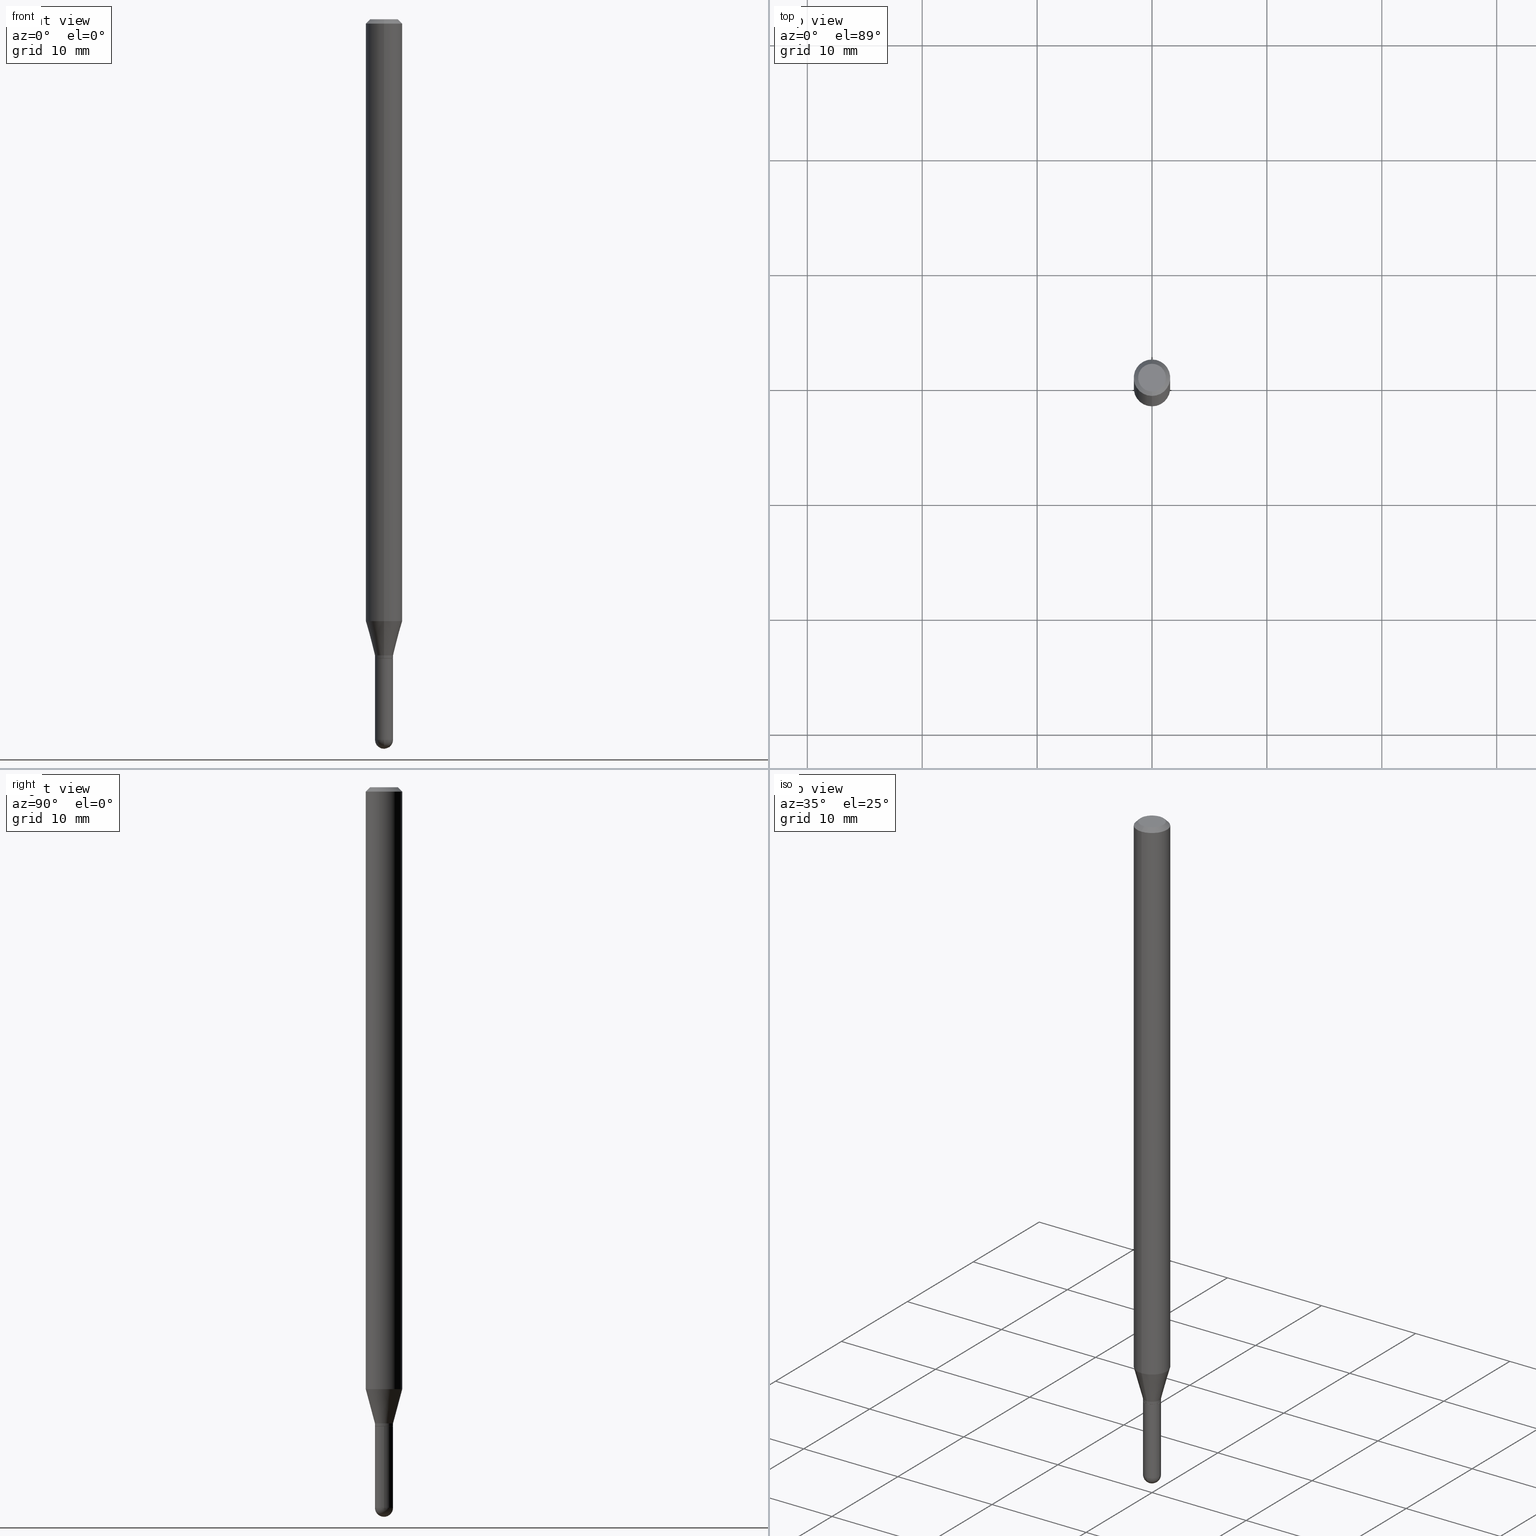
[diagram: canonical four-view strip — front | top / right | iso, engineering-drawing reading convention]
A machine part, canonical four-view strip (front | top / right | iso — engineering-drawing reading convention). The complete STEP part file that produces these views, byte-faithful:
ISO-10303-21;
HEADER;
FILE_DESCRIPTION (( 'STEP AP203' ),
    '1' );
FILE_NAME ('02733.STEP',
    '2024-03-07T21:04:35',
    ( '' ),
    ( '' ),
    'SwSTEP 2.0',
    'SolidWorks 2023',
    '' );
FILE_SCHEMA (( 'CONFIG_CONTROL_DESIGN' ));
ENDSEC;

DATA;
#1 = CARTESIAN_POINT ( 'NONE',  ( 2.202682480856837865E-16, 0.03099999999999231148, -2.180000000000000160 ) ) ;
#2 = FACE_OUTER_BOUND ( 'NONE', #406, .T. ) ;
#3 = ADVANCED_FACE ( 'NONE', ( #255 ), #47, .T. ) ;
#4 = LINE ( 'NONE', #313, #112 ) ;
#5 = AXIS2_PLACEMENT_3D ( 'NONE', #188, #359, #45 ) ;
#6 = ADVANCED_FACE ( 'NONE', ( #25 ), #159, .T. ) ;
#7 = DIRECTION ( 'NONE',  ( -2.445448998971213131E-29, 3.491509703900840918E-15, 1.000000000000000000 ) ) ;
#8 = DATE_TIME_ROLE ( 'creation_date' ) ;
#9 = FACE_OUTER_BOUND ( 'NONE', #203, .T. ) ;
#10 = CARTESIAN_POINT ( 'NONE',  ( 5.354310583247471482E-29, -7.644660496690890779E-15, -2.189500000000000224 ) ) ;
#11 = CONICAL_SURFACE ( 'NONE', #282, 0.06250000000000000000, 0.7853981633974483900 ) ;
#12 = CIRCLE ( 'NONE', #353, 0.04749999999999999362 ) ;
#13 = AXIS2_PLACEMENT_3D ( 'NONE', #66, #259, #212 ) ;
#14 = CARTESIAN_POINT ( 'NONE',  ( 5.043592810545655603E-29, -7.201030668786385681E-15, -2.062440399561580762 ) ) ;
#15 = ORIENTED_EDGE ( 'NONE', *, *, #384, .F. ) ;
#16 = CARTESIAN_POINT ( 'NONE',  ( -4.364351673553916201E-16, -0.06250000000000000000, 2.182193564938025327E-16 ) ) ;
#17 = EDGE_LOOP ( 'NONE', ( #205, #465, #338, #242 ) ) ;
#18 = FACE_OUTER_BOUND ( 'NONE', #291, .T. ) ;
#19 = AXIS2_PLACEMENT_3D ( 'NONE', #65, #298, #211 ) ;
#20 = DIRECTION ( 'NONE',  ( -2.445448998971213131E-29, 3.491509703900840918E-15, 1.000000000000000000 ) ) ;
#21 = AXIS2_PLACEMENT_3D ( 'NONE', #139, #143, #466 ) ;
#22 = ORIENTED_EDGE ( 'NONE', *, *, #248, .F. ) ;
#23 = DIRECTION ( 'NONE',  ( -2.445448998971213131E-29, 3.491509703900840523E-15, 1.000000000000000000 ) ) ;
#24 = EDGE_CURVE ( 'NONE', #185, #439, #399, .T. ) ;
#25 = FACE_OUTER_BOUND ( 'NONE', #343, .T. ) ;
#26 = APPLICATION_CONTEXT ( 'configuration controlled 3d designs of mechanical parts and assemblies' ) ;
#27 =( NAMED_UNIT ( * ) SI_UNIT ( $, .STERADIAN. ) SOLID_ANGLE_UNIT ( ) );
#28 = VERTEX_POINT ( 'NONE', #147 ) ;
#29 = DIRECTION ( 'NONE',  ( -2.445448998971212570E-29, 3.491509703900840918E-15, 1.000000000000000000 ) ) ;
#30 = AXIS2_PLACEMENT_3D ( 'NONE', #113, #435, #425 ) ;
#31 = DIRECTION ( 'NONE',  ( -6.982962677686266711E-15, -1.000000000000000000, 3.491509703900840523E-15 ) ) ;
#32 = ADVANCED_FACE ( 'NONE', ( #275 ), #383, .T. ) ;
#33 = CARTESIAN_POINT ( 'NONE',  ( 0.000000000000000000, 0.000000000000000000, 0.000000000000000000 ) ) ;
#34 = SHAPE_DEFINITION_REPRESENTATION ( #349, #69 ) ;
#35 = VERTEX_POINT ( 'NONE', #285 ) ;
#36 = DIRECTION ( 'NONE',  ( 1.000000000000000000, -6.982962677686265922E-15, 4.883557194083112340E-29 ) ) ;
#37 = EDGE_CURVE ( 'NONE', #231, #361, #344, .T. ) ;
#38 =( GEOMETRIC_REPRESENTATION_CONTEXT ( 3 ) GLOBAL_UNCERTAINTY_ASSIGNED_CONTEXT ( ( #347 ) ) GLOBAL_UNIT_ASSIGNED_CONTEXT ( ( #254, #210, #27 ) ) REPRESENTATION_CONTEXT ( 'NONE', 'WORKASPACE' ) );
#39 = PERSON_AND_ORGANIZATION ( #500, #389 ) ;
#40 = DIRECTION ( 'NONE',  ( 1.000000000000000000, -6.982962677686270655E-15, 0.000000000000000000 ) ) ;
#41 = DIRECTION ( 'NONE',  ( 4.937700262164548042E-15, 0.7071067811865451302, -0.7071067811865499042 ) ) ;
#42 = COORDINATED_UNIVERSAL_TIME_OFFSET ( 5, 0, .BEHIND. ) ;
#43 = DIRECTION ( 'NONE',  ( -2.445448998971213131E-29, 3.491509703900840523E-15, 1.000000000000000000 ) ) ;
#44 = ORIENTED_EDGE ( 'NONE', *, *, #306, .T. ) ;
#45 = DIRECTION ( 'NONE',  ( 1.000000000000000000, -6.982962677686270655E-15, 0.000000000000000000 ) ) ;
#46 = ORIENTED_EDGE ( 'NONE', *, *, #486, .T. ) ;
#47 = CONICAL_SURFACE ( 'NONE', #19, 0.06250000000000000000, 0.7853981633974483900 ) ;
#48 = CIRCLE ( 'NONE', #505, 0.06250000000000000000 ) ;
#49 = AXIS2_PLACEMENT_3D ( 'NONE', #379, #29, #504 ) ;
#50 = EDGE_CURVE ( 'NONE', #99, #351, #448, .T. ) ;
#51 = CALENDAR_DATE ( 2024, 7, 3 ) ;
#52 = DIRECTION ( 'NONE',  ( -6.982962677686265922E-15, -1.000000000000000000, 3.491509703900840129E-15 ) ) ;
#53 = ORIENTED_EDGE ( 'NONE', *, *, #365, .F. ) ;
#54 = DIRECTION ( 'NONE',  ( 6.982962677686265922E-15, 1.000000000000000000, 0.000000000000000000 ) ) ;
#55 = ORIENTED_EDGE ( 'NONE', *, *, #218, .T. ) ;
#56 = LINE ( 'NONE', #61, #266 ) ;
#57 = ORIENTED_EDGE ( 'NONE', *, *, #345, .T. ) ;
#58 = AXIS2_PLACEMENT_3D ( 'NONE', #394, #43, #186 ) ;
#59 = DIRECTION ( 'NONE',  ( -2.445448998971213131E-29, 3.491509703900840523E-15, 1.000000000000000000 ) ) ;
#60 = ORIENTED_EDGE ( 'NONE', *, *, #50, .T. ) ;
#61 = CARTESIAN_POINT ( 'NONE',  ( 4.440892098500625669E-16, 0.06250000000000000000, -2.182193564938025327E-16 ) ) ;
#62 = DIRECTION ( 'NONE',  ( -2.445448998971213131E-29, 3.491509703900840523E-15, 1.000000000000000000 ) ) ;
#63 = VECTOR ( 'NONE', #20, 39.37007874015748143 ) ;
#64 = DIRECTION ( 'NONE',  ( -2.445468806185136597E-29, 3.491481338843145583E-15, 1.000000000000000000 ) ) ;
#65 = CARTESIAN_POINT ( 'NONE',  ( 3.668173498456900411E-31, -5.237264555851376057E-17, -0.01500000000000032904 ) ) ;
#66 = CARTESIAN_POINT ( 'NONE',  ( 6.035211466974647334E-29, -8.624263830681084699E-15, -2.469000000000000306 ) ) ;
#67 = APPROVAL_STATUS ( 'not_yet_approved' ) ;
#68 = EDGE_LOOP ( 'NONE', ( #408, #249, #498, #70 ) ) ;
#69 = ADVANCED_BREP_SHAPE_REPRESENTATION ( '02733', ( #424, #241, #443 ), #38 ) ;
#70 = ORIENTED_EDGE ( 'NONE', *, *, #89, .F. ) ;
#71 = CC_DESIGN_APPROVAL ( #386, ( #334 ) ) ;
#72 = CARTESIAN_POINT ( 'NONE',  ( 8.024633299463174581E-45, -1.145723547990923036E-30, -3.281456003719191440E-16 ) ) ;
#73 = DATE_AND_TIME ( #184, #385 ) ;
#74 = ADVANCED_FACE ( 'NONE', ( #2 ), #415, .T. ) ;
#75 = DIRECTION ( 'NONE',  ( -6.982962677686265922E-15, -1.000000000000000000, 3.483106191921935554E-15 ) ) ;
#76 = CIRCLE ( 'NONE', #5, 0.03099999999999999978 ) ;
#77 = APPROVAL_PERSON_ORGANIZATION ( #346, #330, #214 ) ;
#78 = PERSON_AND_ORGANIZATION_ROLE ( 'creator' ) ;
#79 = ORIENTED_EDGE ( 'NONE', *, *, #125, .T. ) ;
#80 = DIRECTION ( 'NONE',  ( -2.445448998971213131E-29, 3.491509703900840523E-15, 1.000000000000000000 ) ) ;
#81 = SECURITY_CLASSIFICATION_LEVEL ( 'unclassified' ) ;
#82 = CARTESIAN_POINT ( 'NONE',  ( 3.668173498456900411E-31, -5.237264555851376057E-17, -0.01500000000000032904 ) ) ;
#83 = DIRECTION ( 'NONE',  ( -2.445448998971213131E-29, 3.491509703900840523E-15, 1.000000000000000000 ) ) ;
#84 = CARTESIAN_POINT ( 'NONE',  ( 2.202682480856832688E-16, 0.03099999999999216924, -2.189500000000000224 ) ) ;
#85 = CIRCLE ( 'NONE', #442, 0.04749999999999999362 ) ;
#86 = CIRCLE ( 'NONE', #13, 0.03099999999999960773 ) ;
#87 = ORIENTED_EDGE ( 'NONE', *, *, #258, .F. ) ;
#88 = CARTESIAN_POINT ( 'NONE',  ( -2.164718430082208858E-16, -0.03100000000000767419, -2.189500000000000224 ) ) ;
#89 = EDGE_CURVE ( 'NONE', #193, #202, #195, .T. ) ;
#90 = CARTESIAN_POINT ( 'NONE',  ( 5.043592810545655603E-29, -7.201030668786385681E-15, -2.062440399561580762 ) ) ;
#91 = ORIENTED_EDGE ( 'NONE', *, *, #350, .F. ) ;
#92 = CARTESIAN_POINT ( 'NONE',  ( 2.164718430083332245E-16, 0.03099999999999118044, -2.469000000000000306 ) ) ;
#93 = VECTOR ( 'NONE', #111, 39.37007874015748143 ) ;
#94 = CONICAL_SURFACE ( 'NONE', #21, 0.03049999999999999586, 0.7853981633974739252 ) ;
#95 = DIRECTION ( 'NONE',  ( 1.000000000000000000, -6.982962677686266711E-15, 4.876176775795935232E-29 ) ) ;
#96 = CC_DESIGN_PERSON_AND_ORGANIZATION_ASSIGNMENT ( #106, #110, ( #334 ) ) ;
#97 = ORIENTED_EDGE ( 'NONE', *, *, #235, .F. ) ;
#98 = DIRECTION ( 'NONE',  ( -6.982962677686265922E-15, -1.000000000000000000, 0.000000000000000000 ) ) ;
#99 = VERTEX_POINT ( 'NONE', #395 ) ;
#100 = LENGTH_MEASURE_WITH_UNIT ( LENGTH_MEASURE( 0.02539999999999999897 ), #219 );
#101 = AXIS2_PLACEMENT_3D ( 'NONE', #170, #206, #95 ) ;
#102 = DIRECTION ( 'NONE',  ( -4.937700262164674260E-15, -0.7071067811865632269, 0.7071067811865319186 ) ) ;
#103 = PERSON_AND_ORGANIZATION_ROLE ( 'design_owner' ) ;
#104 = DIRECTION ( 'NONE',  ( -6.982962677686265922E-15, -1.000000000000000000, 0.000000000000000000 ) ) ;
#105 = AXIS2_PLACEMENT_3D ( 'NONE', #198, #372, #240 ) ;
#106 = PERSON_AND_ORGANIZATION ( #500, #389 ) ;
#107 = VERTEX_POINT ( 'NONE', #215 ) ;
#108 = EDGE_CURVE ( 'NONE', #361, #35, #312, .T. ) ;
#109 = DIRECTION ( 'NONE',  ( 2.445448998971213131E-29, -3.491509703900840523E-15, -1.000000000000000000 ) ) ;
#110 = PERSON_AND_ORGANIZATION_ROLE ( 'classification_officer' ) ;
#111 = DIRECTION ( 'NONE',  ( -2.445448998971213131E-29, 3.491509703900840918E-15, 1.000000000000000000 ) ) ;
#112 = VECTOR ( 'NONE', #480, 39.37007874015748143 ) ;
#113 = CARTESIAN_POINT ( 'NONE',  ( 5.355533307746956891E-29, -7.646406251542840967E-15, -2.189999999999999947 ) ) ;
#114 = FACE_OUTER_BOUND ( 'NONE', #199, .T. ) ;
#115 = ADVANCED_FACE ( 'NONE', ( #388 ), #122, .T. ) ;
#116 = DIRECTION ( 'NONE',  ( 1.000000000000000000, -6.982962677686266711E-15, 4.876176775795935232E-29 ) ) ;
#117 = COORDINATED_UNIVERSAL_TIME_OFFSET ( 5, 0, .BEHIND. ) ;
#118 = ORIENTED_EDGE ( 'NONE', *, *, #398, .F. ) ;
#119 = LINE ( 'NONE', #1, #451 ) ;
#120 = DESIGN_CONTEXT ( 'detailed design', #26, 'design' ) ;
#121 = ADVANCED_FACE ( 'NONE', ( #429 ), #402, .T. ) ;
#122 = CYLINDRICAL_SURFACE ( 'NONE', #502, 0.03099999999999992345 ) ;
#123 = APPROVAL ( #153, 'UNSPECIFIED' ) ;
#124 = AXIS2_PLACEMENT_3D ( 'NONE', #14, #131, #374 ) ;
#125 = EDGE_CURVE ( 'NONE', #35, #150, #281, .T. ) ;
#126 = EDGE_LOOP ( 'NONE', ( #373, #335, #238, #342 ) ) ;
#127 = VECTOR ( 'NONE', #102, 39.37007874015748143 ) ;
#128 = ORIENTED_EDGE ( 'NONE', *, *, #332, .T. ) ;
#129 = DIRECTION ( 'NONE',  ( -6.982962677686265922E-15, -1.000000000000000000, 0.000000000000000000 ) ) ;
#130 = ORIENTED_EDGE ( 'NONE', *, *, #108, .T. ) ;
#131 = DIRECTION ( 'NONE',  ( -2.445448998971213131E-29, 3.491509703900840523E-15, 1.000000000000000000 ) ) ;
#132 = ORIENTED_EDGE ( 'NONE', *, *, #264, .T. ) ;
#133 = ORIENTED_EDGE ( 'NONE', *, *, #306, .F. ) ;
#134 = CC_DESIGN_DATE_AND_TIME_ASSIGNMENT ( #390, #8, ( #315 ) ) ;
#135 = CARTESIAN_POINT ( 'NONE',  ( 5.331078817757245343E-29, -7.611491154503834045E-15, -2.180000000000000160 ) ) ;
#136 = ORIENTED_EDGE ( 'NONE', *, *, #213, .F. ) ;
#137 = AXIS2_PLACEMENT_3D ( 'NONE', #367, #414, #194 ) ;
#138 = CARTESIAN_POINT ( 'NONE',  ( 0.000000000000000000, 0.000000000000000000, 0.000000000000000000 ) ) ;
#139 = CARTESIAN_POINT ( 'NONE',  ( 5.355533307746956891E-29, -7.646406251542840967E-15, -2.189999999999999947 ) ) ;
#140 = APPLICATION_PROTOCOL_DEFINITION ( 'international standard', 'config_control_design', 1994, #321 ) ;
#141 = AXIS2_PLACEMENT_3D ( 'NONE', #348, #296, #420 ) ;
#142 = PLANE ( 'NONE',  #141 ) ;
#143 = DIRECTION ( 'NONE',  ( -2.445448998971213131E-29, 3.491509703900840523E-15, 1.000000000000000000 ) ) ;
#144 = FACE_OUTER_BOUND ( 'NONE', #441, .T. ) ;
#145 = CARTESIAN_POINT ( 'NONE',  ( -2.129803616693775335E-16, -0.03050000000000764253, -2.189999999999999947 ) ) ;
#146 = AXIS2_PLACEMENT_3D ( 'NONE', #364, #333, #377 ) ;
#147 = CARTESIAN_POINT ( 'NONE',  ( 4.440892098501128074E-16, 0.06249999999999277661, -2.062440399561580762 ) ) ;
#148 = DIRECTION ( 'NONE',  ( -2.445468806185136877E-29, 3.491481338843145188E-15, 1.000000000000000000 ) ) ;
#149 = DATE_AND_TIME ( #356, #423 ) ;
#150 = VERTEX_POINT ( 'NONE', #509 ) ;
#151 = LINE ( 'NONE', #314, #461 ) ;
#152 = EDGE_CURVE ( 'NONE', #193, #506, #151, .T. ) ;
#153 = APPROVAL_STATUS ( 'not_yet_approved' ) ;
#154 = LINE ( 'NONE', #191, #93 ) ;
#155 = AXIS2_PLACEMENT_3D ( 'NONE', #397, #274, #432 ) ;
#156 = EDGE_CURVE ( 'NONE', #506, #28, #119, .T. ) ;
#157 = EDGE_LOOP ( 'NONE', ( #200, #87 ) ) ;
#158 = DIRECTION ( 'NONE',  ( 1.000000000000000000, -6.982962677686270655E-15, 0.000000000000000000 ) ) ;
#159 = CYLINDRICAL_SURFACE ( 'NONE', #467, 0.03099999999999999978 ) ;
#160 = CARTESIAN_POINT ( 'NONE',  ( 3.668173498456900411E-31, -5.237264555851376057E-17, -0.01500000000000032904 ) ) ;
#161 = EDGE_CURVE ( 'NONE', #231, #447, #228, .T. ) ;
#162 = CARTESIAN_POINT ( 'NONE',  ( 5.331078817757245343E-29, -7.611491154503834045E-15, -2.180000000000000160 ) ) ;
#163 = VECTOR ( 'NONE', #307, 39.37007874015748143 ) ;
#164 = CC_DESIGN_APPROVAL ( #330, ( #315 ) ) ;
#165 = VERTEX_POINT ( 'NONE', #472 ) ;
#166 = FACE_OUTER_BOUND ( 'NONE', #201, .T. ) ;
#167 = CARTESIAN_POINT ( 'NONE',  ( -4.287811248607203282E-16, -0.06250000000000005551, -0.01500000000000011047 ) ) ;
#168 = DIRECTION ( 'NONE',  ( -2.445448998971213131E-29, 3.491509703900840523E-15, 1.000000000000000000 ) ) ;
#169 = AXIS2_PLACEMENT_3D ( 'NONE', #276, #83, #434 ) ;
#170 = CARTESIAN_POINT ( 'NONE',  ( 0.000000000000000000, 0.000000000000000000, 0.000000000000000000 ) ) ;
#171 = CC_DESIGN_PERSON_AND_ORGANIZATION_ASSIGNMENT ( #464, #103, ( #450 ) ) ;
#172 = DIRECTION ( 'NONE',  ( 0.000000000000000000, 0.000000000000000000, 1.000000000000000000 ) ) ;
#173 = EDGE_CURVE ( 'NONE', #107, #326, #416, .T. ) ;
#174 = CARTESIAN_POINT ( 'NONE',  ( -3.773273898774340269E-16, -0.04749999999999999362, -1.622988894366292625E-16 ) ) ;
#175 = CARTESIAN_POINT ( 'NONE',  ( 6.035211466974647334E-29, -8.624263830681084699E-15, -2.469000000000000306 ) ) ;
#176 = CC_DESIGN_PERSON_AND_ORGANIZATION_ASSIGNMENT ( #39, #511, ( #234 ) ) ;
#177 = DIRECTION ( 'NONE',  ( 1.000000000000000000, 0.000000000000000000, 0.000000000000000000 ) ) ;
#178 = ORIENTED_EDGE ( 'NONE', *, *, #345, .F. ) ;
#179 = CARTESIAN_POINT ( 'NONE',  ( 5.331078817757245343E-29, -7.611491154503834045E-15, -2.180000000000000160 ) ) ;
#180 = ORIENTED_EDGE ( 'NONE', *, *, #152, .T. ) ;
#181 = VECTOR ( 'NONE', #328, 39.37007874015748143 ) ;
#182 = CC_DESIGN_PERSON_AND_ORGANIZATION_ASSIGNMENT ( #221, #226, ( #234 ) ) ;
#183 = DIRECTION ( 'NONE',  ( 6.982962677686265922E-15, 1.000000000000000000, -3.483106191921935554E-15 ) ) ;
#184 = CALENDAR_DATE ( 2024, 7, 3 ) ;
#185 = VERTEX_POINT ( 'NONE', #311 ) ;
#186 = DIRECTION ( 'NONE',  ( -6.982962677686265922E-15, -1.000000000000000000, 0.000000000000000000 ) ) ;
#187 = CALENDAR_DATE ( 2024, 7, 3 ) ;
#188 = CARTESIAN_POINT ( 'NONE',  ( 6.037862482471103495E-29, -8.620467425603728566E-15, -2.469000000000000306 ) ) ;
#189 = CARTESIAN_POINT ( 'NONE',  ( -0.03099999999999999978, -7.913137530749477307E-15, -2.469000000000000306 ) ) ;
#190 = CIRCLE ( 'NONE', #124, 0.06250000000000000000 ) ;
#191 = CARTESIAN_POINT ( 'NONE',  ( -2.164718430082737148E-16, -0.03099999999999992345, 1.082368008209257778E-16 ) ) ;
#192 = DIRECTION ( 'NONE',  ( -6.982962677686265922E-15, -1.000000000000000000, 3.491509703900840129E-15 ) ) ;
#193 = VERTEX_POINT ( 'NONE', #84 ) ;
#194 = DIRECTION ( 'NONE',  ( -6.982962677686265922E-15, -1.000000000000000000, 3.483106191921935554E-15 ) ) ;
#195 = CIRCLE ( 'NONE', #169, 0.03099999999999992345 ) ;
#196 = LOCAL_TIME ( 16, 4, 35.00000000000000000, #229 ) ;
#197 = EDGE_LOOP ( 'NONE', ( #263, #46 ) ) ;
#198 = CARTESIAN_POINT ( 'NONE',  ( 2.164718430083277765E-16, 0.03099999999999235312, -2.189999999999999947 ) ) ;
#199 = EDGE_LOOP ( 'NONE', ( #329, #454, #272, #426 ) ) ;
#200 = ORIENTED_EDGE ( 'NONE', *, *, #24, .F. ) ;
#201 = EDGE_LOOP ( 'NONE', ( #57, #180, #310, #136 ) ) ;
#202 = VERTEX_POINT ( 'NONE', #88 ) ;
#203 = EDGE_LOOP ( 'NONE', ( #243, #471, #501, #253 ) ) ;
#204 = LINE ( 'NONE', #167, #181 ) ;
#205 = ORIENTED_EDGE ( 'NONE', *, *, #355, .F. ) ;
#206 = DIRECTION ( 'NONE',  ( -2.445468806185136597E-29, 3.491481338843145583E-15, 1.000000000000000000 ) ) ;
#207 = DIMENSIONAL_EXPONENTS ( 1.000000000000000000, 0.000000000000000000, 0.000000000000000000, 0.000000000000000000, 0.000000000000000000, 0.000000000000000000, 0.000000000000000000 ) ;
#208 = CONICAL_SURFACE ( 'NONE', #477, 0.03099999999999992345, 0.2617993877991500740 ) ;
#209 = APPROVAL_PERSON_ORGANIZATION ( #392, #123, #358 ) ;
#210 =( NAMED_UNIT ( * ) PLANE_ANGLE_UNIT ( ) SI_UNIT ( $, .RADIAN. ) );
#211 = DIRECTION ( 'NONE',  ( 6.982962677686265922E-15, 1.000000000000000000, -3.483106191921935554E-15 ) ) ;
#212 = DIRECTION ( 'NONE',  ( -7.105427357601000281E-15, -1.000000000000000000, 0.000000000000000000 ) ) ;
#213 = EDGE_CURVE ( 'NONE', #202, #491, #154, .T. ) ;
#214 = APPROVAL_ROLE ( '' ) ;
#215 = CARTESIAN_POINT ( 'NONE',  ( 6.112346507714612851E-29, -8.730601549646543009E-15, -2.500000000000000000 ) ) ;
#216 = CIRCLE ( 'NONE', #430, 0.06250000000000000000 ) ;
#217 = FACE_OUTER_BOUND ( 'NONE', #157, .T. ) ;
#218 = EDGE_CURVE ( 'NONE', #491, #303, #475, .T. ) ;
#219 =( LENGTH_UNIT ( ) NAMED_UNIT ( * ) SI_UNIT ( $, .METRE. ) );
#220 = DATE_AND_TIME ( #51, #323 ) ;
#221 = PERSON_AND_ORGANIZATION ( #500, #389 ) ;
#222 = VECTOR ( 'NONE', #366, 39.37007874015748854 ) ;
#223 = CIRCLE ( 'NONE', #271, 0.03099999999999999978 ) ;
#224 = CARTESIAN_POINT ( 'NONE',  ( 6.037862482471103495E-29, -8.620467425603728566E-15, -2.469000000000000306 ) ) ;
#225 = ADVANCED_FACE ( 'NONE', ( #9 ), #11, .T. ) ;
#226 = PERSON_AND_ORGANIZATION_ROLE ( 'design_supplier' ) ;
#227 = ORIENTED_EDGE ( 'NONE', *, *, #252, .T. ) ;
#228 = LINE ( 'NONE', #279, #163 ) ;
#229 = COORDINATED_UNIVERSAL_TIME_OFFSET ( 5, 0, .BEHIND. ) ;
#230 = SPHERICAL_SURFACE ( 'NONE', #409, 0.03099999999999960773 ) ;
#231 = VERTEX_POINT ( 'NONE', #189 ) ;
#232 = DIRECTION ( 'NONE',  ( 1.839019923739598738E-15, 0.2588190451025247363, 0.9659258262890673130 ) ) ;
#233 = AXIS2_PLACEMENT_3D ( 'NONE', #284, #286, #192 ) ;
#234 = PRODUCT_DEFINITION_FORMATION_WITH_SPECIFIED_SOURCE ( 'ANY', '', #450, .NOT_KNOWN. ) ;
#235 = EDGE_CURVE ( 'NONE', #150, #447, #468, .T. ) ;
#236 = ORIENTED_EDGE ( 'NONE', *, *, #218, .F. ) ;
#237 = CARTESIAN_POINT ( 'NONE',  ( 2.184918912462840521E-16, 0.03049999999999235267, -2.189999999999999947 ) ) ;
#238 = ORIENTED_EDGE ( 'NONE', *, *, #213, .T. ) ;
#239 = ORIENTED_EDGE ( 'NONE', *, *, #355, .T. ) ;
#240 = DIRECTION ( 'NONE',  ( -1.000000000000000000, 6.982962677686265922E-15, -4.876176775795935793E-29 ) ) ;
#241 = MANIFOLD_SOLID_BREP ( 'Body-Move/Copy2[2]', #421 ) ;
#242 = ORIENTED_EDGE ( 'NONE', *, *, #332, .F. ) ;
#243 = ORIENTED_EDGE ( 'NONE', *, *, #473, .F. ) ;
#244 = DIRECTION ( 'NONE',  ( 6.982962677686265922E-15, 1.000000000000000000, 0.000000000000000000 ) ) ;
#245 = CARTESIAN_POINT ( 'NONE',  ( 4.440892098501133991E-16, 0.06249999999999995143, -0.01500000000000054588 ) ) ;
#246 = AXIS2_PLACEMENT_3D ( 'NONE', #456, #427, #158 ) ;
#247 = CYLINDRICAL_SURFACE ( 'NONE', #101, 0.03099999999999999978 ) ;
#248 = EDGE_CURVE ( 'NONE', #165, #351, #216, .T. ) ;
#249 = ORIENTED_EDGE ( 'NONE', *, *, #258, .T. ) ;
#250 = DIRECTION ( 'NONE',  ( -2.445448998971213131E-29, 3.491509703900840523E-15, 1.000000000000000000 ) ) ;
#251 = CC_DESIGN_DATE_AND_TIME_ASSIGNMENT ( #220, #309, ( #334 ) ) ;
#252 = EDGE_CURVE ( 'NONE', #326, #231, #223, .T. ) ;
#253 = ORIENTED_EDGE ( 'NONE', *, *, #50, .F. ) ;
#254 =( CONVERSION_BASED_UNIT ( 'INCH', #100 ) LENGTH_UNIT ( ) NAMED_UNIT ( #207 ) );
#255 = FACE_OUTER_BOUND ( 'NONE', #396, .T. ) ;
#256 = AXIS2_PLACEMENT_3D ( 'NONE', #10, #490, #129 ) ;
#257 = AXIS2_PLACEMENT_3D ( 'NONE', #179, #300, #104 ) ;
#258 = EDGE_CURVE ( 'NONE', #439, #185, #297, .T. ) ;
#259 = DIRECTION ( 'NONE',  ( -1.000000000000000000, 7.105427357601001070E-15, -4.926315508542082329E-29 ) ) ;
#260 = CARTESIAN_POINT ( 'NONE',  ( 3.321787289678984079E-16, 0.03099999999999231148, -2.180000000000000160 ) ) ;
#261 = ORIENTED_EDGE ( 'NONE', *, *, #486, .F. ) ;
#262 = ORIENTED_EDGE ( 'NONE', *, *, #125, .F. ) ;
#263 = ORIENTED_EDGE ( 'NONE', *, *, #235, .T. ) ;
#264 = EDGE_CURVE ( 'NONE', #35, #326, #76, .T. ) ;
#265 = CLOSED_SHELL ( 'NONE', ( #413, #74, #375, #288, #6 ) ) ;
#266 = VECTOR ( 'NONE', #452, 39.37007874015748143 ) ;
#267 = CARTESIAN_POINT ( 'NONE',  ( 5.355576685545449192E-29, -7.646344132066488554E-15, -2.189999999999999947 ) ) ;
#268 = EDGE_CURVE ( 'NONE', #439, #193, #4, .T. ) ;
#269 = CARTESIAN_POINT ( 'NONE',  ( -2.164718430082203928E-16, -0.03100000000000753195, -2.180000000000000160 ) ) ;
#270 = DATE_AND_TIME ( #187, #196 ) ;
#271 = AXIS2_PLACEMENT_3D ( 'NONE', #224, #391, #40 ) ;
#272 = ORIENTED_EDGE ( 'NONE', *, *, #264, .F. ) ;
#273 = AXIS2_PLACEMENT_3D ( 'NONE', #411, #62, #336 ) ;
#274 = DIRECTION ( 'NONE',  ( -2.445468806185136597E-29, 3.491481338843145583E-15, 1.000000000000000000 ) ) ;
#275 = FACE_OUTER_BOUND ( 'NONE', #340, .T. ) ;
#276 = CARTESIAN_POINT ( 'NONE',  ( 5.354310583247471482E-29, -7.644660496690890779E-15, -2.189500000000000224 ) ) ;
#277 = APPROVAL_DATE_TIME ( #149, #330 ) ;
#278 = ORIENTED_EDGE ( 'NONE', *, *, #419, .T. ) ;
#279 = CARTESIAN_POINT ( 'NONE',  ( -0.03099999999999999978, 2.202682480856310560E-16, -1.524869877979020612E-30 ) ) ;
#280 = EDGE_LOOP ( 'NONE', ( #227, #393, #97, #262, #132 ) ) ;
#281 = LINE ( 'NONE', #444, #494 ) ;
#282 = AXIS2_PLACEMENT_3D ( 'NONE', #160, #109, #183 ) ;
#283 = APPROVAL_PERSON_ORGANIZATION ( #438, #386, #428 ) ;
#284 = CARTESIAN_POINT ( 'NONE',  ( 0.000000000000000000, 0.000000000000000000, 0.000000000000000000 ) ) ;
#285 = CARTESIAN_POINT ( 'NONE',  ( 0.03099999999999999978, -8.349877621843383680E-15, -2.469000000000000306 ) ) ;
#286 = DIRECTION ( 'NONE',  ( -2.445448998971213131E-29, 3.491509703900840523E-15, 1.000000000000000000 ) ) ;
#287 = FACE_OUTER_BOUND ( 'NONE', #280, .T. ) ;
#288 = ADVANCED_FACE ( 'NONE', ( #114 ), #230, .T. ) ;
#289 = AXIS2_PLACEMENT_3D ( 'NONE', #162, #168, #98 ) ;
#290 = CIRCLE ( 'NONE', #257, 0.03099999999999992345 ) ;
#291 = EDGE_LOOP ( 'NONE', ( #404, #239, #22, #15 ) ) ;
#292 = DIRECTION ( 'NONE',  ( -6.982962677686265922E-15, -1.000000000000000000, 3.491509703900840523E-15 ) ) ;
#293 = PRODUCT_RELATED_PRODUCT_CATEGORY ( 'detail', '', ( #450 ) ) ;
#294 = DIRECTION ( 'NONE',  ( -6.982962677686265922E-15, -1.000000000000000000, 4.370956789862821150E-15 ) ) ;
#295 = DIRECTION ( 'NONE',  ( -1.000000000000000000, 6.982962677686265922E-15, -4.883557194083112340E-29 ) ) ;
#296 = DIRECTION ( 'NONE',  ( 2.445448998971212570E-29, -3.491509703900840918E-15, -1.000000000000000000 ) ) ;
#297 = CIRCLE ( 'NONE', #58, 0.03049999999999999586 ) ;
#298 = DIRECTION ( 'NONE',  ( 2.445448998971213131E-29, -3.491509703900840523E-15, -1.000000000000000000 ) ) ;
#299 = ORIENTED_EDGE ( 'NONE', *, *, #37, .F. ) ;
#300 = DIRECTION ( 'NONE',  ( -2.445448998971213131E-29, 3.491509703900840523E-15, 1.000000000000000000 ) ) ;
#301 = CARTESIAN_POINT ( 'NONE',  ( -2.164718430082203928E-16, -0.03100000000000753195, -2.180000000000000160 ) ) ;
#302 = ADVANCED_FACE ( 'NONE', ( #436 ), #489, .T. ) ;
#303 = VERTEX_POINT ( 'NONE', #458 ) ;
#304 = AXIS2_PLACEMENT_3D ( 'NONE', #175, #295, #244 ) ;
#305 = LINE ( 'NONE', #145, #127 ) ;
#306 = EDGE_CURVE ( 'NONE', #99, #459, #85, .T. ) ;
#307 = DIRECTION ( 'NONE',  ( -2.445468806185136877E-29, 3.491481338843145188E-15, 1.000000000000000000 ) ) ;
#308 = ADVANCED_FACE ( 'NONE', ( #166 ), #325, .T. ) ;
#309 = DATE_TIME_ROLE ( 'classification_date' ) ;
#310 = ORIENTED_EDGE ( 'NONE', *, *, #478, .F. ) ;
#311 = CARTESIAN_POINT ( 'NONE',  ( -2.129803616693775335E-16, -0.03050000000000764253, -2.189999999999999947 ) ) ;
#312 = CIRCLE ( 'NONE', #246, 0.03099999999999999978 ) ;
#313 = CARTESIAN_POINT ( 'NONE',  ( 2.167155344068840712E-16, 0.03049999999999235267, -2.189999999999999947 ) ) ;
#314 = CARTESIAN_POINT ( 'NONE',  ( 2.202682480856304644E-16, 0.03099999999999992345, -1.082368008209257778E-16 ) ) ;
#315 = PRODUCT_DEFINITION ( 'UNKNOWN', '', #234, #120 ) ;
#316 = DIRECTION ( 'NONE',  ( -2.445468806185136597E-29, 3.491481338843145583E-15, 1.000000000000000000 ) ) ;
#317 = ORIENTED_EDGE ( 'NONE', *, *, #473, .T. ) ;
#318 = CARTESIAN_POINT ( 'NONE',  ( 0.000000000000000000, 0.000000000000000000, 0.000000000000000000 ) ) ;
#319 = ORIENTED_EDGE ( 'NONE', *, *, #24, .T. ) ;
#320 = DIRECTION ( 'NONE',  ( -2.445448998971213131E-29, 3.491509703900840523E-15, 1.000000000000000000 ) ) ;
#321 = APPLICATION_CONTEXT ( 'configuration controlled 3d designs of mechanical parts and assemblies' ) ;
#322 = CIRCLE ( 'NONE', #273, 0.03099999999999992345 ) ;
#323 = LOCAL_TIME ( 16, 4, 35.00000000000000000, #400 ) ;
#324 = ORIENTED_EDGE ( 'NONE', *, *, #37, .T. ) ;
#325 = CYLINDRICAL_SURFACE ( 'NONE', #233, 0.03099999999999992345 ) ;
#326 = VERTEX_POINT ( 'NONE', #92 ) ;
#327 = ADVANCED_FACE ( 'NONE', ( #493 ), #208, .T. ) ;
#328 = DIRECTION ( 'NONE',  ( -4.851104656540964275E-15, -0.7071067811865500152, -0.7071067811865450192 ) ) ;
#329 = ORIENTED_EDGE ( 'NONE', *, *, #460, .F. ) ;
#330 = APPROVAL ( #67, 'UNSPECIFIED' ) ;
#331 = FACE_OUTER_BOUND ( 'NONE', #197, .T. ) ;
#332 = EDGE_CURVE ( 'NONE', #351, #165, #360, .T. ) ;
#333 = DIRECTION ( 'NONE',  ( -2.445448998971213131E-29, 3.491509703900840523E-15, 1.000000000000000000 ) ) ;
#334 = SECURITY_CLASSIFICATION ( '', '', #81 ) ;
#335 = ORIENTED_EDGE ( 'NONE', *, *, #89, .T. ) ;
#336 = DIRECTION ( 'NONE',  ( -6.982962677686265922E-15, -1.000000000000000000, 0.000000000000000000 ) ) ;
#337 = CARTESIAN_POINT ( 'NONE',  ( 6.037862482471103495E-29, -8.620467425603728566E-15, -2.469000000000000306 ) ) ;
#338 = ORIENTED_EDGE ( 'NONE', *, *, #384, .T. ) ;
#339 = ORIENTED_EDGE ( 'NONE', *, *, #268, .T. ) ;
#340 = EDGE_LOOP ( 'NONE', ( #319, #339, #178, #497 ) ) ;
#341 = CARTESIAN_POINT ( 'NONE',  ( -0.03099999999999999978, -7.913137530749477307E-15, -2.189999999999999947 ) ) ;
#342 = ORIENTED_EDGE ( 'NONE', *, *, #419, .F. ) ;
#343 = EDGE_LOOP ( 'NONE', ( #368, #324, #130, #79, #261 ) ) ;
#344 = CIRCLE ( 'NONE', #369, 0.03099999999999999978 ) ;
#345 = EDGE_CURVE ( 'NONE', #202, #193, #422, .T. ) ;
#346 = PERSON_AND_ORGANIZATION ( #500, #389 ) ;
#347 = UNCERTAINTY_MEASURE_WITH_UNIT (LENGTH_MEASURE( 1.000000000000000082E-05 ), #254, 'distance_accuracy_value', 'NONE');
#348 = CARTESIAN_POINT ( 'NONE',  ( 3.316907271900976096E-16, 0.04749999999999999362, -3.299195111212495028E-16 ) ) ;
#349 = PRODUCT_DEFINITION_SHAPE ( 'NONE', 'NONE',  #315 ) ;
#350 = EDGE_CURVE ( 'NONE', #28, #303, #190, .T. ) ;
#351 = VERTEX_POINT ( 'NONE', #245 ) ;
#352 = AXIS2_PLACEMENT_3D ( 'NONE', #318, #363, #487 ) ;
#353 = AXIS2_PLACEMENT_3D ( 'NONE', #72, #23, #31 ) ;
#354 = CARTESIAN_POINT ( 'NONE',  ( 0.000000000000000000, 0.000000000000000000, 0.000000000000000000 ) ) ;
#355 = EDGE_CURVE ( 'NONE', #28, #351, #56, .T. ) ;
#356 = CALENDAR_DATE ( 2024, 7, 3 ) ;
#357 = CARTESIAN_POINT ( 'NONE',  ( 6.035211466974647334E-29, -8.624263830681084699E-15, -2.469000000000000306 ) ) ;
#358 = APPROVAL_ROLE ( '' ) ;
#359 = DIRECTION ( 'NONE',  ( -2.445468806185136597E-29, 3.491481338843145583E-15, 1.000000000000000000 ) ) ;
#360 = CIRCLE ( 'NONE', #137, 0.06250000000000000000 ) ;
#361 = VERTEX_POINT ( 'NONE', #446 ) ;
#362 = AXIS2_PLACEMENT_3D ( 'NONE', #138, #376, #292 ) ;
#363 = DIRECTION ( 'NONE',  ( -2.445448998971213131E-29, 3.491509703900840523E-15, 1.000000000000000000 ) ) ;
#364 = CARTESIAN_POINT ( 'NONE',  ( 5.355533307746956891E-29, -7.646406251542840967E-15, -2.189999999999999947 ) ) ;
#365 = EDGE_CURVE ( 'NONE', #303, #28, #48, .T. ) ;
#366 = DIRECTION ( 'NONE',  ( -1.807323732225328562E-15, -0.2588190451025179639, 0.9659258262890690894 ) ) ;
#367 = CARTESIAN_POINT ( 'NONE',  ( 3.668173498456900411E-31, -5.237264555851376057E-17, -0.01500000000000032904 ) ) ;
#368 = ORIENTED_EDGE ( 'NONE', *, *, #161, .F. ) ;
#369 = AXIS2_PLACEMENT_3D ( 'NONE', #337, #510, #412 ) ;
#370 = CARTESIAN_POINT ( 'NONE',  ( 6.035211466974647334E-29, -8.624263830681084699E-15, -2.469000000000000306 ) ) ;
#371 = CC_DESIGN_APPROVAL ( #123, ( #234 ) ) ;
#372 = DIRECTION ( 'NONE',  ( 2.438088387897960049E-29, -3.491481338843145188E-15, -1.000000000000000000 ) ) ;
#373 = ORIENTED_EDGE ( 'NONE', *, *, #152, .F. ) ;
#374 = DIRECTION ( 'NONE',  ( -6.982962677686265922E-15, -1.000000000000000000, 4.370956789862821150E-15 ) ) ;
#375 = ADVANCED_FACE ( 'NONE', ( #331 ), #410, .F. ) ;
#376 = DIRECTION ( 'NONE',  ( -2.445448998971213131E-29, 3.491509703900840523E-15, 1.000000000000000000 ) ) ;
#377 = DIRECTION ( 'NONE',  ( -6.982962677686265922E-15, -1.000000000000000000, 0.000000000000000000 ) ) ;
#378 = AXIS2_PLACEMENT_3D ( 'NONE', #267, #64, #382 ) ;
#379 = CARTESIAN_POINT ( 'NONE',  ( 5.355533307746956891E-29, -7.646406251542840967E-15, -2.189999999999999947 ) ) ;
#380 = ORIENTED_EDGE ( 'NONE', *, *, #252, .F. ) ;
#381 = ORIENTED_EDGE ( 'NONE', *, *, #478, .T. ) ;
#382 = DIRECTION ( 'NONE',  ( 1.000000000000000000, -6.982962677686270655E-15, 0.000000000000000000 ) ) ;
#383 = CONICAL_SURFACE ( 'NONE', #146, 0.03049999999999999586, 0.7853981633974739252 ) ;
#384 = EDGE_CURVE ( 'NONE', #303, #165, #495, .T. ) ;
#385 = LOCAL_TIME ( 16, 4, 35.00000000000000000, #117 ) ;
#386 = APPROVAL ( #474, 'UNSPECIFIED' ) ;
#387 = CALENDAR_DATE ( 2024, 7, 3 ) ;
#388 = FACE_OUTER_BOUND ( 'NONE', #126, .T. ) ;
#389 = ORGANIZATION ( 'UNSPECIFIED', 'UNSPECIFIED', '' ) ;
#390 = DATE_AND_TIME ( #387, #463 ) ;
#391 = DIRECTION ( 'NONE',  ( -2.445468806185136597E-29, 3.491481338843145583E-15, 1.000000000000000000 ) ) ;
#392 = PERSON_AND_ORGANIZATION ( #500, #389 ) ;
#393 = ORIENTED_EDGE ( 'NONE', *, *, #161, .T. ) ;
#394 = CARTESIAN_POINT ( 'NONE',  ( 5.355533307746956891E-29, -7.646406251542840967E-15, -2.189999999999999947 ) ) ;
#395 = CARTESIAN_POINT ( 'NONE',  ( 3.840629472727447874E-16, 0.04749999999999999362, -4.939923113072090255E-16 ) ) ;
#396 = EDGE_LOOP ( 'NONE', ( #118, #133, #60, #128 ) ) ;
#397 = CARTESIAN_POINT ( 'NONE',  ( 5.355576685545449192E-29, -7.646344132066488554E-15, -2.189999999999999947 ) ) ;
#398 = EDGE_CURVE ( 'NONE', #459, #165, #204, .T. ) ;
#399 = CIRCLE ( 'NONE', #30, 0.03049999999999999586 ) ;
#400 = COORDINATED_UNIVERSAL_TIME_OFFSET ( 5, 0, .BEHIND. ) ;
#401 = VECTOR ( 'NONE', #41, 39.37007874015748143 ) ;
#402 = CYLINDRICAL_SURFACE ( 'NONE', #352, 0.06250000000000000000 ) ;
#403 = ORIENTED_EDGE ( 'NONE', *, *, #156, .F. ) ;
#404 = ORIENTED_EDGE ( 'NONE', *, *, #365, .T. ) ;
#405 = CARTESIAN_POINT ( 'NONE',  ( 8.024633299463174581E-45, -1.145723547990923036E-30, -3.281456003719191440E-16 ) ) ;
#406 = EDGE_LOOP ( 'NONE', ( #512, #483, #299, #380 ) ) ;
#407 = DIRECTION ( 'NONE',  ( -1.000000000000000000, 6.982962677686265922E-15, -4.883557194083112340E-29 ) ) ;
#408 = ORIENTED_EDGE ( 'NONE', *, *, #268, .F. ) ;
#409 = AXIS2_PLACEMENT_3D ( 'NONE', #370, #407, #54 ) ;
#410 = PLANE ( 'NONE',  #105 ) ;
#411 = CARTESIAN_POINT ( 'NONE',  ( 5.331078817757245343E-29, -7.611491154503834045E-15, -2.180000000000000160 ) ) ;
#412 = DIRECTION ( 'NONE',  ( 1.000000000000000000, -6.982962677686270655E-15, 0.000000000000000000 ) ) ;
#413 = ADVANCED_FACE ( 'NONE', ( #287 ), #247, .T. ) ;
#414 = DIRECTION ( 'NONE',  ( -2.445448998971213131E-29, 3.491509703900840523E-15, 1.000000000000000000 ) ) ;
#415 = SPHERICAL_SURFACE ( 'NONE', #304, 0.03099999999999960773 ) ;
#416 = CIRCLE ( 'NONE', #462, 0.03099999999999960773 ) ;
#417 = MECHANICAL_CONTEXT ( 'NONE', #321, 'mechanical' ) ;
#418 = APPLICATION_PROTOCOL_DEFINITION ( 'international standard', 'config_control_design', 1994, #26 ) ;
#419 = EDGE_CURVE ( 'NONE', #506, #491, #322, .T. ) ;
#420 = DIRECTION ( 'NONE',  ( 6.982962677686265922E-15, 1.000000000000000000, -3.491509703900840918E-15 ) ) ;
#421 = CLOSED_SHELL ( 'NONE', ( #308, #32, #225, #437, #327, #302, #121, #3, #457, #453, #445, #115 ) ) ;
#422 = CIRCLE ( 'NONE', #256, 0.03099999999999992345 ) ;
#423 = LOCAL_TIME ( 16, 4, 35.00000000000000000, #42 ) ;
#424 = MANIFOLD_SOLID_BREP ( 'Body-Move/Copy2[1]', #265 ) ;
#425 = DIRECTION ( 'NONE',  ( -6.982962677686265922E-15, -1.000000000000000000, 0.000000000000000000 ) ) ;
#426 = ORIENTED_EDGE ( 'NONE', *, *, #108, .F. ) ;
#427 = DIRECTION ( 'NONE',  ( -2.445468806185136597E-29, 3.491481338843145583E-15, 1.000000000000000000 ) ) ;
#428 = APPROVAL_ROLE ( '' ) ;
#429 = FACE_OUTER_BOUND ( 'NONE', #17, .T. ) ;
#430 = AXIS2_PLACEMENT_3D ( 'NONE', #82, #80, #75 ) ;
#431 = APPROVAL_DATE_TIME ( #270, #386 ) ;
#432 = DIRECTION ( 'NONE',  ( 1.000000000000000000, -6.982962677686270655E-15, 0.000000000000000000 ) ) ;
#433 = CARTESIAN_POINT ( 'NONE',  ( 4.364351673553919652E-16, 0.06249999999999995143, -0.01500000000000054588 ) ) ;
#434 = DIRECTION ( 'NONE',  ( -6.982962677686265922E-15, -1.000000000000000000, 0.000000000000000000 ) ) ;
#435 = DIRECTION ( 'NONE',  ( -2.445448998971213131E-29, 3.491509703900840523E-15, 1.000000000000000000 ) ) ;
#436 = FACE_OUTER_BOUND ( 'NONE', #488, .T. ) ;
#437 = ADVANCED_FACE ( 'NONE', ( #18 ), #499, .T. ) ;
#438 = PERSON_AND_ORGANIZATION ( #500, #389 ) ;
#439 = VERTEX_POINT ( 'NONE', #237 ) ;
#440 = DIRECTION ( 'NONE',  ( 6.982962677686265922E-15, 1.000000000000000000, 0.000000000000000000 ) ) ;
#441 = EDGE_LOOP ( 'NONE', ( #44, #317 ) ) ;
#442 = AXIS2_PLACEMENT_3D ( 'NONE', #405, #59, #449 ) ;
#443 = AXIS2_PLACEMENT_3D ( 'NONE', #33, #172, #177 ) ;
#444 = CARTESIAN_POINT ( 'NONE',  ( 0.03099999999999999978, -2.164718430082742572E-16, 1.511614800496739984E-30 ) ) ;
#445 = ADVANCED_FACE ( 'NONE', ( #455 ), #94, .T. ) ;
#446 = CARTESIAN_POINT ( 'NONE',  ( -2.202682480855692291E-16, -0.03100000000000842360, -2.469000000000000306 ) ) ;
#447 = VERTEX_POINT ( 'NONE', #341 ) ;
#448 = LINE ( 'NONE', #433, #401 ) ;
#449 = DIRECTION ( 'NONE',  ( -6.982962677686266711E-15, -1.000000000000000000, 3.491509703900840523E-15 ) ) ;
#450 = PRODUCT ( '02733', '02733', '', ( #417 ) ) ;
#451 = VECTOR ( 'NONE', #232, 39.37007874015748854 ) ;
#452 = DIRECTION ( 'NONE',  ( -2.445448998971213131E-29, 3.491509703900840918E-15, 1.000000000000000000 ) ) ;
#453 = ADVANCED_FACE ( 'NONE', ( #217 ), #503, .F. ) ;
#454 = ORIENTED_EDGE ( 'NONE', *, *, #173, .T. ) ;
#455 = FACE_OUTER_BOUND ( 'NONE', #68, .T. ) ;
#456 = CARTESIAN_POINT ( 'NONE',  ( 6.037862482471103495E-29, -8.620467425603728566E-15, -2.469000000000000306 ) ) ;
#457 = ADVANCED_FACE ( 'NONE', ( #144 ), #142, .F. ) ;
#458 = CARTESIAN_POINT ( 'NONE',  ( -4.364351673553413795E-16, -0.06250000000000724421, -2.062440399561580318 ) ) ;
#459 = VERTEX_POINT ( 'NONE', #174 ) ;
#460 = EDGE_CURVE ( 'NONE', #107, #361, #86, .T. ) ;
#461 = VECTOR ( 'NONE', #7, 39.37007874015748143 ) ;
#462 = AXIS2_PLACEMENT_3D ( 'NONE', #357, #36, #440 ) ;
#463 = LOCAL_TIME ( 16, 4, 35.00000000000000000, #508 ) ;
#464 = PERSON_AND_ORGANIZATION ( #500, #389 ) ;
#465 = ORIENTED_EDGE ( 'NONE', *, *, #350, .T. ) ;
#466 = DIRECTION ( 'NONE',  ( -6.982962677686265922E-15, -1.000000000000000000, 0.000000000000000000 ) ) ;
#467 = AXIS2_PLACEMENT_3D ( 'NONE', #481, #316, #116 ) ;
#468 = CIRCLE ( 'NONE', #155, 0.03099999999999999978 ) ;
#469 = CC_DESIGN_SECURITY_CLASSIFICATION ( #334, ( #234 ) ) ;
#470 = APPROVAL_DATE_TIME ( #73, #123 ) ;
#471 = ORIENTED_EDGE ( 'NONE', *, *, #398, .T. ) ;
#472 = CARTESIAN_POINT ( 'NONE',  ( -4.364351673553912750E-16, -0.06250000000000005551, -0.01500000000000011047 ) ) ;
#473 = EDGE_CURVE ( 'NONE', #459, #99, #12, .T. ) ;
#474 = APPROVAL_STATUS ( 'not_yet_approved' ) ;
#475 = LINE ( 'NONE', #269, #222 ) ;
#476 = EDGE_LOOP ( 'NONE', ( #381, #479, #53, #236 ) ) ;
#477 = AXIS2_PLACEMENT_3D ( 'NONE', #135, #250, #492 ) ;
#478 = EDGE_CURVE ( 'NONE', #491, #506, #290, .T. ) ;
#479 = ORIENTED_EDGE ( 'NONE', *, *, #156, .T. ) ;
#480 = DIRECTION ( 'NONE',  ( 5.024295867788190974E-15, 0.7071067811865681119, 0.7071067811865270336 ) ) ;
#481 = CARTESIAN_POINT ( 'NONE',  ( 0.000000000000000000, 0.000000000000000000, 0.000000000000000000 ) ) ;
#482 = PERSON_AND_ORGANIZATION ( #500, #389 ) ;
#483 = ORIENTED_EDGE ( 'NONE', *, *, #460, .T. ) ;
#484 = CC_DESIGN_PERSON_AND_ORGANIZATION_ASSIGNMENT ( #482, #78, ( #315 ) ) ;
#485 = DIRECTION ( 'NONE',  ( -2.445448998971213131E-29, 3.491509703900840523E-15, 1.000000000000000000 ) ) ;
#486 = EDGE_CURVE ( 'NONE', #447, #150, #507, .T. ) ;
#487 = DIRECTION ( 'NONE',  ( -6.982962677686265922E-15, -1.000000000000000000, 3.491509703900840523E-15 ) ) ;
#488 = EDGE_LOOP ( 'NONE', ( #403, #278, #55, #91 ) ) ;
#489 = CONICAL_SURFACE ( 'NONE', #289, 0.03099999999999992345, 0.2617993877991500740 ) ;
#490 = DIRECTION ( 'NONE',  ( -2.445448998971213131E-29, 3.491509703900840523E-15, 1.000000000000000000 ) ) ;
#491 = VERTEX_POINT ( 'NONE', #301 ) ;
#492 = DIRECTION ( 'NONE',  ( -6.982962677686265922E-15, -1.000000000000000000, 0.000000000000000000 ) ) ;
#493 = FACE_OUTER_BOUND ( 'NONE', #476, .T. ) ;
#494 = VECTOR ( 'NONE', #148, 39.37007874015748143 ) ;
#495 = LINE ( 'NONE', #16, #63 ) ;
#496 = EDGE_CURVE ( 'NONE', #185, #202, #305, .T. ) ;
#497 = ORIENTED_EDGE ( 'NONE', *, *, #496, .F. ) ;
#498 = ORIENTED_EDGE ( 'NONE', *, *, #496, .T. ) ;
#499 = CYLINDRICAL_SURFACE ( 'NONE', #362, 0.06250000000000000000 ) ;
#500 = PERSON ( 'UNSPECIFIED', 'UNSPECIFIED', 'UNSPECIFIED', ('UNSPECIFIED'), ('UNSPECIFIED'), ('UNSPECIFIED') ) ;
#501 = ORIENTED_EDGE ( 'NONE', *, *, #248, .T. ) ;
#502 = AXIS2_PLACEMENT_3D ( 'NONE', #354, #485, #52 ) ;
#503 = PLANE ( 'NONE',  #49 ) ;
#504 = DIRECTION ( 'NONE',  ( -6.982962677686265922E-15, -1.000000000000000000, 3.491509703900840918E-15 ) ) ;
#505 = AXIS2_PLACEMENT_3D ( 'NONE', #90, #320, #294 ) ;
#506 = VERTEX_POINT ( 'NONE', #260 ) ;
#507 = CIRCLE ( 'NONE', #378, 0.03099999999999999978 ) ;
#508 = COORDINATED_UNIVERSAL_TIME_OFFSET ( 5, 0, .BEHIND. ) ;
#509 = CARTESIAN_POINT ( 'NONE',  ( 0.03099999999999999978, -7.862815975074762885E-15, -2.189999999999999947 ) ) ;
#510 = DIRECTION ( 'NONE',  ( -2.445468806185136597E-29, 3.491481338843145583E-15, 1.000000000000000000 ) ) ;
#511 = PERSON_AND_ORGANIZATION_ROLE ( 'creator' ) ;
#512 = ORIENTED_EDGE ( 'NONE', *, *, #173, .F. ) ;
ENDSEC;
END-ISO-10303-21;
